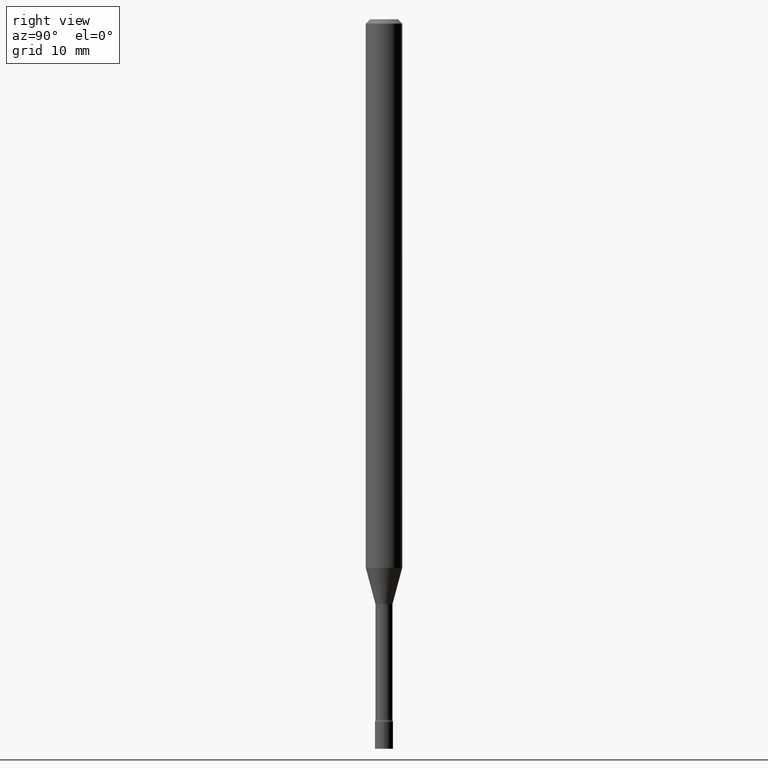
[diagram: clean part render]
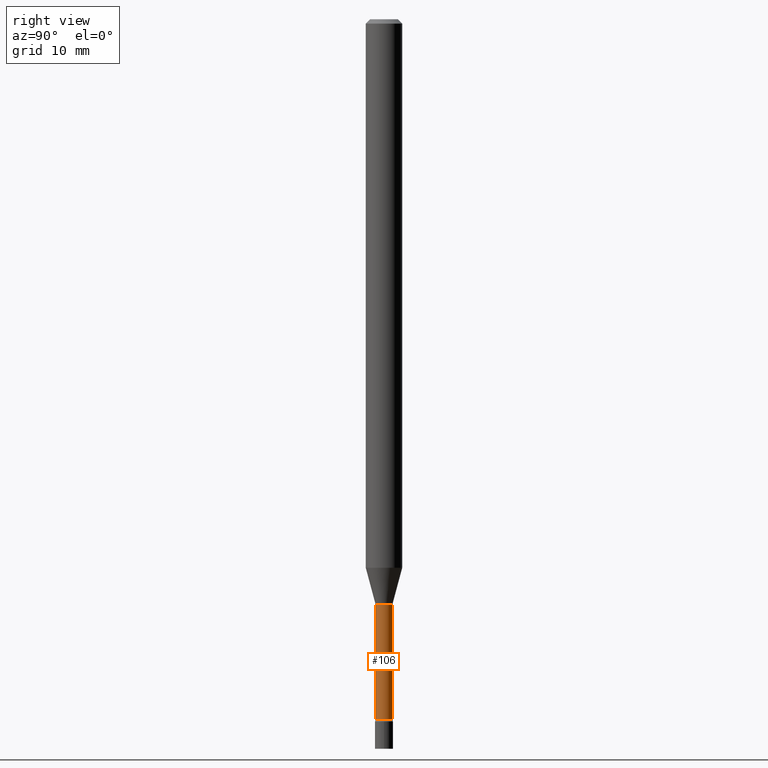
[diagram: same view with one face highlighted and labeled with its STEP entity id]
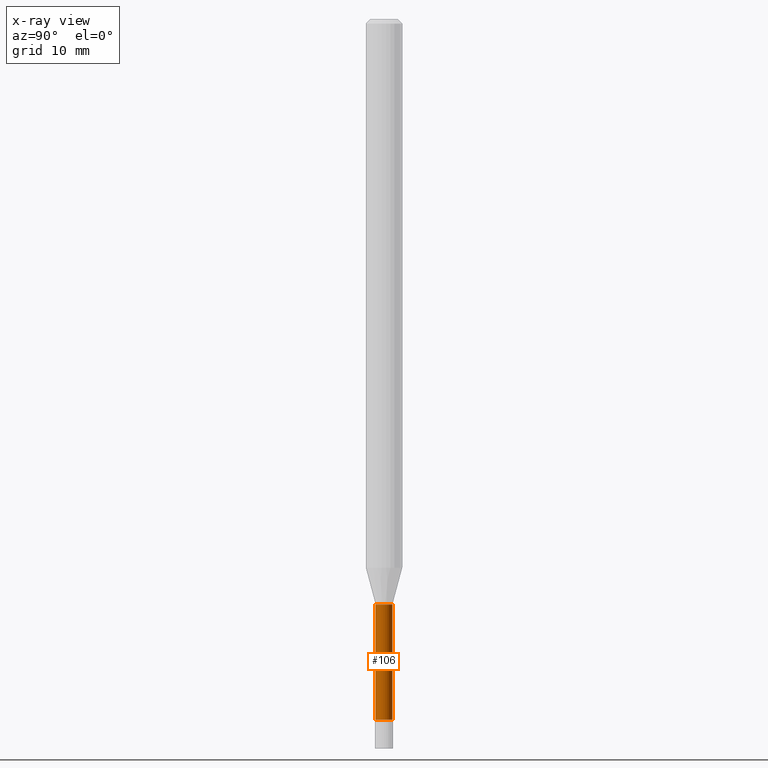
[diagram: x-ray of the same camera — body ghosted, the highlighted face saturated]
A machine part, right view. The second image highlights one B-rep face of the part: STEP entity #106.
The next image is the same camera in x-ray: the body ghosted, the highlighted face saturated — about 0% of this face is hidden behind the body in this view.
In plain terms, the highlighted cylindrical surface (edge-blend (fillet) strip) has radius 0.7404 mm, axis along (-0, 0, 1).
Its self-contained STEP definition (entity closure, byte-faithful):
#25 = CARTESIAN_POINT ( 'NONE',  ( -2.035533620544962127E-16, -0.02915000000000841224, -2.399783525791634897 ) ) ;
#26 = ORIENTED_EDGE ( 'NONE', *, *, #339, .T. ) ;
#34 = VERTEX_POINT ( 'NONE', #502 ) ;
#84 = CARTESIAN_POINT ( 'NONE',  ( -2.035533620545056051E-16, -0.02915000000000700364, -2.005974787463811193 ) ) ;
#85 = LINE ( 'NONE', #238, #142 ) ;
#94 = EDGE_CURVE ( 'NONE', #388, #473, #287, .T. ) ;
#98 = DIRECTION ( 'NONE',  ( -2.445480495465296209E-29, 3.491464599128644458E-15, 1.000000000000000000 ) ) ;
#106 = ADVANCED_FACE ( 'NONE', ( #222 ), #250, .T. ) ;
#123 = CARTESIAN_POINT ( 'NONE',  ( 2.136957277799090563E-16, 0.02914999999999165481, -2.399783525791634897 ) ) ;
#142 = VECTOR ( 'NONE', #477, 39.37007874015748143 ) ;
#145 = CARTESIAN_POINT ( 'NONE',  ( 5.868623805662381857E-29, -8.378759225873614383E-15, -2.399783525791634897 ) ) ;
#164 = DIRECTION ( 'NONE',  ( -6.982962677686265922E-15, -1.000000000000000000, 3.491464599128644063E-15 ) ) ;
#166 = ORIENTED_EDGE ( 'NONE', *, *, #170, .T. ) ;
#170 = EDGE_CURVE ( 'NONE', #470, #34, #85, .T. ) ;
#182 = DIRECTION ( 'NONE',  ( -6.982962677686265922E-15, -1.000000000000000000, 0.000000000000000000 ) ) ;
#222 = FACE_OUTER_BOUND ( 'NONE', #428, .T. ) ;
#225 = AXIS2_PLACEMENT_3D ( 'NONE', #492, #98, #457 ) ;
#238 = CARTESIAN_POINT ( 'NONE',  ( 2.071232074740692945E-16, 0.02915000000000001618, -1.017761930646000333E-16 ) ) ;
#250 = CYLINDRICAL_SURFACE ( 'NONE', #278, 0.02915000000000001618 ) ;
#273 = CIRCLE ( 'NONE', #225, 0.02914999999999999883 ) ;
#277 = AXIS2_PLACEMENT_3D ( 'NONE', #145, #297, #182 ) ;
#278 = AXIS2_PLACEMENT_3D ( 'NONE', #406, #361, #164 ) ;
#287 = LINE ( 'NONE', #300, #360 ) ;
#297 = DIRECTION ( 'NONE',  ( -2.445480495465296209E-29, 3.491464599128644458E-15, 1.000000000000000000 ) ) ;
#298 = ORIENTED_EDGE ( 'NONE', *, *, #94, .F. ) ;
#300 = CARTESIAN_POINT ( 'NONE',  ( -2.035533620545547610E-16, -0.02915000000000001618, 1.017761930646000333E-16 ) ) ;
#339 = EDGE_CURVE ( 'NONE', #388, #470, #469, .T. ) ;
#360 = VECTOR ( 'NONE', #461, 39.37007874015748143 ) ;
#361 = DIRECTION ( 'NONE',  ( -2.445480495465296209E-29, 3.491464599128644458E-15, 1.000000000000000000 ) ) ;
#388 = VERTEX_POINT ( 'NONE', #25 ) ;
#406 = CARTESIAN_POINT ( 'NONE',  ( 0.000000000000000000, 0.000000000000000000, 0.000000000000000000 ) ) ;
#428 = EDGE_LOOP ( 'NONE', ( #26, #166, #438, #298 ) ) ;
#438 = ORIENTED_EDGE ( 'NONE', *, *, #513, .F. ) ;
#457 = DIRECTION ( 'NONE',  ( -6.982962677686265922E-15, -1.000000000000000000, 0.000000000000000000 ) ) ;
#461 = DIRECTION ( 'NONE',  ( -2.445480495465296209E-29, 3.491464599128644063E-15, 1.000000000000000000 ) ) ;
#469 = CIRCLE ( 'NONE', #277, 0.02915000000000003352 ) ;
#470 = VERTEX_POINT ( 'NONE', #123 ) ;
#473 = VERTEX_POINT ( 'NONE', #84 ) ;
#477 = DIRECTION ( 'NONE',  ( -2.445480495465296209E-29, 3.491464599128644063E-15, 1.000000000000000000 ) ) ;
#492 = CARTESIAN_POINT ( 'NONE',  ( 4.905572217137893975E-29, -7.003789957174503140E-15, -2.005974787463811193 ) ) ;
#502 = CARTESIAN_POINT ( 'NONE',  ( 2.071232074741279660E-16, 0.02914999999999299402, -2.005974787463811193 ) ) ;
#513 = EDGE_CURVE ( 'NONE', #473, #34, #273, .T. ) ;